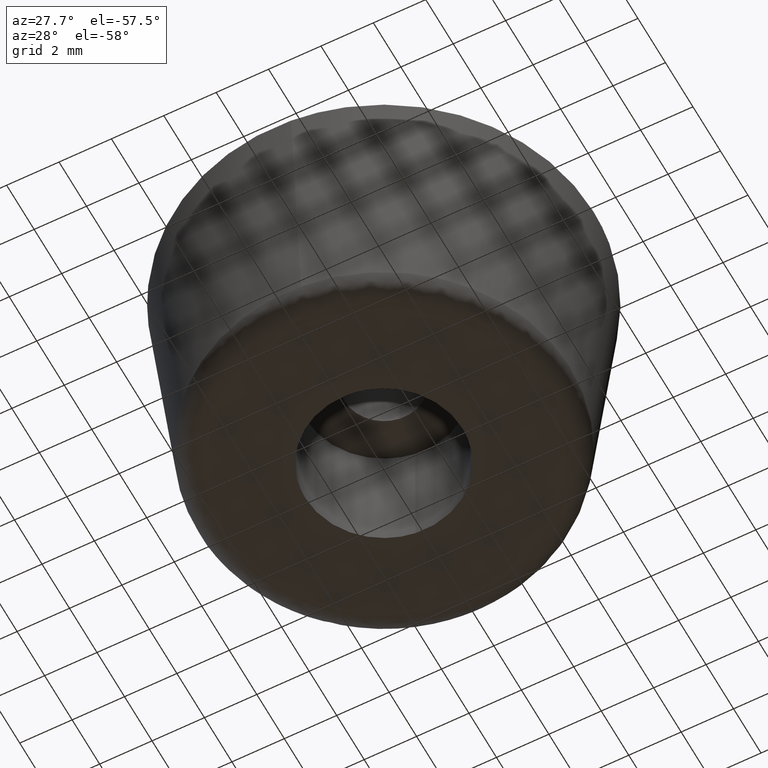
[diagram: clean part render]
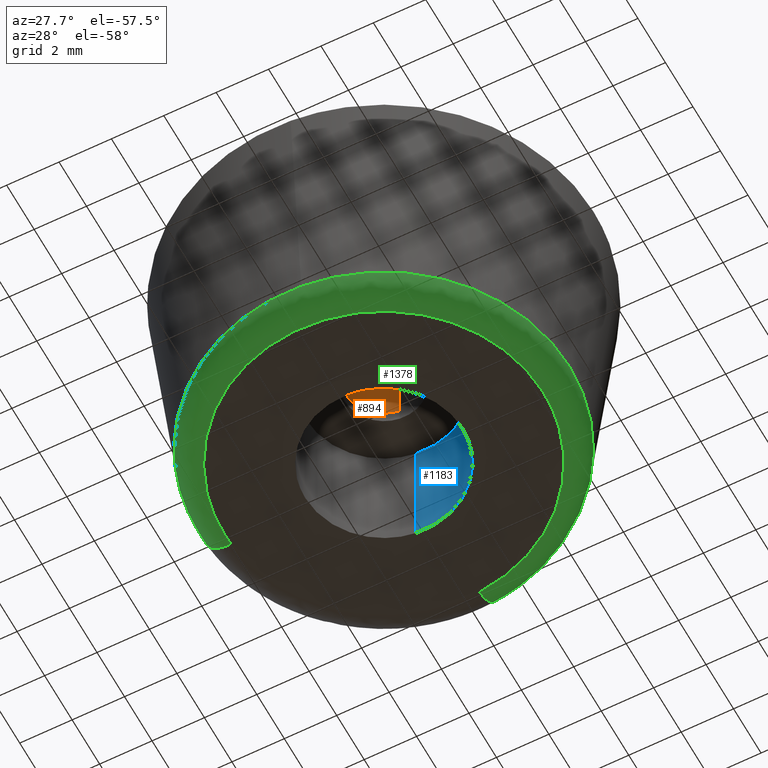
[diagram: same view with three faces highlighted in distinct colors, each labeled with its STEP entity id]
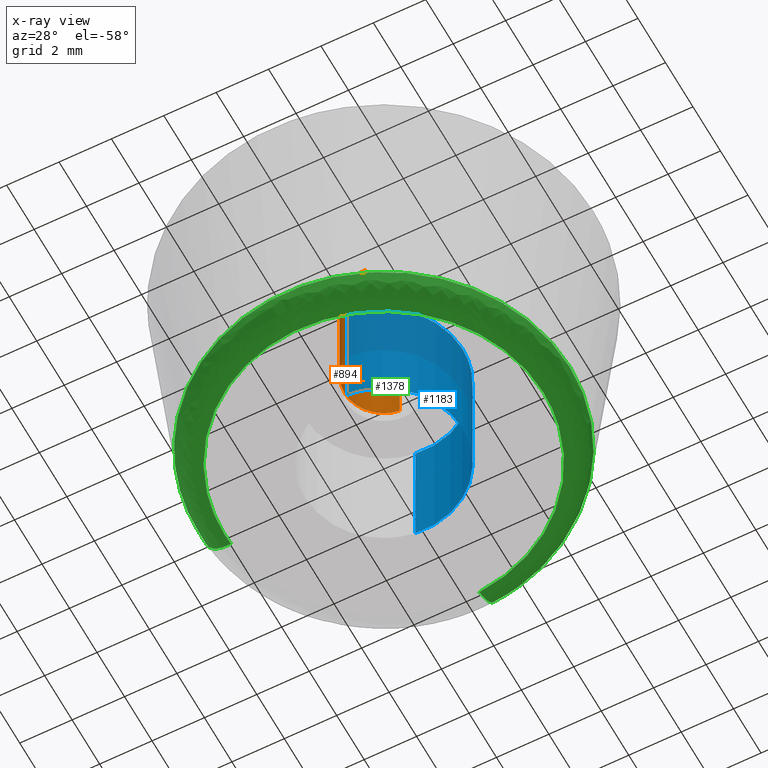
[diagram: x-ray of the same camera — body ghosted, the three highlighted faces saturated]
A machine part, auxiliary view with three faces highlighted in distinct colors.
The next image is the same camera in x-ray (body ghosted, the three faces saturated) — at least one of them is partly hidden behind the body in this view.
Their STEP definitions:

[orange] entity #894 — the highlighted face is a freeform B-spline surface patch.
#731=CARTESIAN_POINT('',(-0.177051351996448,1.489514289544155,10.0));
#732=VERTEX_POINT('',#731);
#750=CARTESIAN_POINT('',(-0.177051351996448,1.489514289544155,5.500000000000000));
#751=VERTEX_POINT('',#750);
#752=CARTESIAN_POINT('',(-0.177051351996448,1.489514289544155,10.0));
#753=CARTESIAN_POINT('',(-0.177051351996448,1.489514289544155,5.500000000000000));
#754=QUASI_UNIFORM_CURVE('',1,(#752,#753),.UNSPECIFIED.,.F.,.U.);
#755=EDGE_CURVE('',#732,#751,#754,.T.);
#774=CARTESIAN_POINT('',(0.091572809311081,-1.497202197632262,5.500000000000000));
#775=VERTEX_POINT('',#774);
#789=CARTESIAN_POINT('',(0.091572809311081,-1.497202197632262,10.0));
#790=VERTEX_POINT('',#789);
#791=CARTESIAN_POINT('',(0.091572809311081,-1.497202197632262,10.0));
#792=CARTESIAN_POINT('',(0.091572809311081,-1.497202197632262,5.500000000000000));
#793=QUASI_UNIFORM_CURVE('',1,(#791,#792),.UNSPECIFIED.,.F.,.U.);
#794=EDGE_CURVE('',#790,#775,#793,.T.);
#812=CARTESIAN_POINT('',(0.091572809302285,-1.497202197632800,10.112500000000001));
#813=CARTESIAN_POINT('',(-1.405629388330515,-1.588775006935085,10.112500000000002));
#814=CARTESIAN_POINT('',(-1.497202197632800,-0.091572809302285,10.112500000000001));
#815=CARTESIAN_POINT('',(-1.583679295098791,1.322315236259252,10.112500000000002));
#816=CARTESIAN_POINT('',(-0.177051351985138,1.489514289545500,10.112500000000004));
#817=CARTESIAN_POINT('',(0.091572809302285,-1.497202197632800,5.384687499999998));
#818=CARTESIAN_POINT('',(-1.405629388330515,-1.588775006935085,5.384687499999999));
#819=CARTESIAN_POINT('',(-1.497202197632800,-0.091572809302285,5.384687499999998));
#820=CARTESIAN_POINT('',(-1.583679295098791,1.322315236259252,5.384687499999999));
#821=CARTESIAN_POINT('',(-0.177051351985138,1.489514289545500,5.384687499999998));
#829=(BOUNDED_SURFACE()B_SPLINE_SURFACE(2,1,((#812,#817),(#813,#818),(#814,#819),(#815,#820),(#816,#821)),.UNSPECIFIED.,.F.,.F.,.U.)B_SPLINE_SURFACE_WITH_KNOTS((3,2,3),(2,2),(0.0,1.570796326794897,3.078760800517997),(0.0,4.727812500000006),.UNSPECIFIED.)GEOMETRIC_REPRESENTATION_ITEM()RATIONAL_B_SPLINE_SURFACE(((1.0,1.0),(0.707106781186548,0.707106781186548),(1.0,1.0),(0.718822509939086,0.718822509939086),(0.977505800795127,0.977505800795127)))REPRESENTATION_ITEM('')SURFACE());
#830=CARTESIAN_POINT('',(-1.500000000000000,0.0,10.0));
#831=VERTEX_POINT('',#830);
#832=CARTESIAN_POINT('',(-1.500000000000000,0.0,10.0));
#833=CARTESIAN_POINT('',(-1.500000000000001,1.332261788906676,10.0));
#834=CARTESIAN_POINT('',(-0.177051351996448,1.489514289544155,10.0));
#842=(BOUNDED_CURVE()B_SPLINE_CURVE(2,(#832,#833,#834),.UNSPECIFIED.,.F.,.U.)B_SPLINE_CURVE_WITH_KNOTS((3,3),(0.0,0.229562473513078),.UNSPECIFIED.)CURVE()GEOMETRIC_REPRESENTATION_ITEM()RATIONAL_B_SPLINE_CURVE((1.0,0.731050832855907,0.956026754182855))REPRESENTATION_ITEM(''));
#843=EDGE_CURVE('',#831,#732,#842,.T.);
#844=ORIENTED_EDGE('',*,*,#843,.F.);
#845=CARTESIAN_POINT('',(0.091572809311081,-1.497202197632263,10.0));
#846=CARTESIAN_POINT('',(0.045829144956703,-1.500000000000000,10.000000000000002));
#847=CARTESIAN_POINT('',(0.0,-1.500000000000000,10.0));
#848=CARTESIAN_POINT('',(-1.500000000000000,-1.500000000000000,10.000000000000002));
#849=CARTESIAN_POINT('',(-1.500000000000000,0.0,10.0));
#857=(BOUNDED_CURVE()B_SPLINE_CURVE(2,(#845,#846,#847,#848,#849),.UNSPECIFIED.,.F.,.U.)B_SPLINE_CURVE_WITH_KNOTS((3,2,3),(0.739332962239941,0.750000000000000,1.0),.UNSPECIFIED.)CURVE()GEOMETRIC_REPRESENTATION_ITEM()RATIONAL_B_SPLINE_CURVE((0.976072041668857,0.987502787901007,1.0,0.707106781186548,1.0))REPRESENTATION_ITEM(''));
#858=EDGE_CURVE('',#790,#831,#857,.T.);
#859=ORIENTED_EDGE('',*,*,#858,.F.);
#860=ORIENTED_EDGE('',*,*,#794,.T.);
#861=CARTESIAN_POINT('',(-1.500000000000000,0.0,5.500000000000000));
#862=VERTEX_POINT('',#861);
#863=CARTESIAN_POINT('',(0.091572809311081,-1.497202197632263,5.500000000000000));
#864=CARTESIAN_POINT('',(0.045829144956703,-1.500000000000000,5.499999999999999));
#865=CARTESIAN_POINT('',(0.0,-1.500000000000000,5.500000000000000));
#866=CARTESIAN_POINT('',(-1.500000000000000,-1.500000000000000,5.500000000000001));
#867=CARTESIAN_POINT('',(-1.500000000000000,0.0,5.500000000000000));
#875=(BOUNDED_CURVE()B_SPLINE_CURVE(2,(#863,#864,#865,#866,#867),.UNSPECIFIED.,.F.,.U.)B_SPLINE_CURVE_WITH_KNOTS((3,2,3),(0.739332962239941,0.750000000000000,1.0),.UNSPECIFIED.)CURVE()GEOMETRIC_REPRESENTATION_ITEM()RATIONAL_B_SPLINE_CURVE((0.976072041668857,0.987502787901007,1.0,0.707106781186548,1.0))REPRESENTATION_ITEM(''));
#876=EDGE_CURVE('',#775,#862,#875,.T.);
#877=ORIENTED_EDGE('',*,*,#876,.T.);
#878=CARTESIAN_POINT('',(-1.500000000000000,0.0,5.500000000000000));
#879=CARTESIAN_POINT('',(-1.500000000000000,1.332261788906676,5.499999999999999));
#880=CARTESIAN_POINT('',(-0.177051351996448,1.489514289544155,5.500000000000000));
#888=(BOUNDED_CURVE()B_SPLINE_CURVE(2,(#878,#879,#880),.UNSPECIFIED.,.F.,.U.)B_SPLINE_CURVE_WITH_KNOTS((3,3),(0.0,0.229562473513078),.UNSPECIFIED.)CURVE()GEOMETRIC_REPRESENTATION_ITEM()RATIONAL_B_SPLINE_CURVE((1.0,0.731050832855907,0.956026754182855))REPRESENTATION_ITEM(''));
#889=EDGE_CURVE('',#862,#751,#888,.T.);
#890=ORIENTED_EDGE('',*,*,#889,.T.);
#891=ORIENTED_EDGE('',*,*,#755,.F.);
#892=EDGE_LOOP('',(#844,#859,#860,#877,#890,#891));
#893=FACE_OUTER_BOUND('',#892,.T.);
#894=ADVANCED_FACE('',(#893),#829,.F.);

[blue] entity #1183 — the highlighted face is a freeform B-spline surface patch.
#1081=CARTESIAN_POINT('',(-0.354102703970275,2.979028579091000,5.125000000000002));
#1082=CARTESIAN_POINT('',(-0.268844185913933,2.989162846345817,5.125000000000001));
#1083=CARTESIAN_POINT('',(-0.183145618604571,2.994404395265600,5.125000000000001));
#1084=CARTESIAN_POINT('',(2.811258776661029,3.177550013870171,5.125000000000001));
#1085=CARTESIAN_POINT('',(2.994404395265600,0.183145618604571,5.125000000000001));
#1086=CARTESIAN_POINT('',(3.177550013870171,-2.811258776661029,5.125000000000001));
#1087=CARTESIAN_POINT('',(0.183145618604571,-2.994404395265600,5.125000000000001));
#1088=CARTESIAN_POINT('',(-0.354102703970275,2.979028579091000,-0.128125000000000));
#1089=CARTESIAN_POINT('',(-0.268844185913933,2.989162846345817,-0.128125000000000));
#1090=CARTESIAN_POINT('',(-0.183145618604571,2.994404395265600,-0.128125000000000));
#1091=CARTESIAN_POINT('',(2.811258776661029,3.177550013870171,-0.128125000000000));
#1092=CARTESIAN_POINT('',(2.994404395265600,0.183145618604571,-0.128125000000000));
#1093=CARTESIAN_POINT('',(3.177550013870171,-2.811258776661029,-0.128125000000000));
#1094=CARTESIAN_POINT('',(0.183145618604571,-2.994404395265600,-0.128125000000000));
#1102=(BOUNDED_SURFACE()B_SPLINE_SURFACE(2,1,((#1081,#1088),(#1082,#1089),(#1083,#1090),(#1084,#1091),(#1085,#1092),(#1086,#1093),(#1087,#1094)),.UNSPECIFIED.,.F.,.F.,.U.)B_SPLINE_SURFACE_WITH_KNOTS((3,2,2,3),(2,2),(0.0,0.198822509939086,5.169385258416225,10.139948006893370),(0.0,5.253125000000002),.UNSPECIFIED.)GEOMETRIC_REPRESENTATION_ITEM()RATIONAL_B_SPLINE_SURFACE(((0.977505800795127,0.977505800795127),(0.988284271247462,0.988284271247462),(1.0,1.0),(0.707106781186548,0.707106781186548),(1.0,1.0),(0.707106781186548,0.707106781186548),(1.0,1.0)))REPRESENTATION_ITEM('')SURFACE());
#1103=CARTESIAN_POINT('',(-0.354100897287089,2.979028793841571,6.573276E-015));
#1104=VERTEX_POINT('',#1103);
#1105=CARTESIAN_POINT('',(3.0,0.0,0.0));
#1106=VERTEX_POINT('',#1105);
#1107=CARTESIAN_POINT('',(-0.354100897287090,2.979028793841571,6.573276E-015));
#1108=CARTESIAN_POINT('',(-0.177671446064207,3.000000000000000,0.0));
#1109=CARTESIAN_POINT('',(0.0,3.0,0.0));
#1110=CARTESIAN_POINT('',(3.0,3.0,0.0));
#1111=CARTESIAN_POINT('',(3.0,0.0,0.0));
#1119=(BOUNDED_CURVE()B_SPLINE_CURVE(2,(#1107,#1108,#1109,#1110,#1111),.UNSPECIFIED.,.F.,.U.)B_SPLINE_CURVE_WITH_KNOTS((3,2,3),(0.229562576010579,0.250000000000000,0.500000000000000),.UNSPECIFIED.)CURVE()GEOMETRIC_REPRESENTATION_ITEM()RATIONAL_B_SPLINE_CURVE((0.956026955082251,0.976056068413933,1.0,0.707106781186548,1.0))REPRESENTATION_ITEM(''));
#1120=EDGE_CURVE('',#1104,#1106,#1119,.T.);
#1121=ORIENTED_EDGE('',*,*,#1120,.T.);
#1122=CARTESIAN_POINT('',(0.183142324537267,-2.994404596735751,-1.675049E-014));
#1123=VERTEX_POINT('',#1122);
#1124=CARTESIAN_POINT('',(3.0,0.0,0.0));
#1125=CARTESIAN_POINT('',(3.000000000000000,-2.822121311059588,0.0));
#1126=CARTESIAN_POINT('',(0.183142324537267,-2.994404596735751,-1.675049E-014));
#1134=(BOUNDED_CURVE()B_SPLINE_CURVE(2,(#1124,#1125,#1126),.UNSPECIFIED.,.F.,.U.)B_SPLINE_CURVE_WITH_KNOTS((3,3),(0.500000000000000,0.739333152056283),.UNSPECIFIED.)CURVE()GEOMETRIC_REPRESENTATION_ITEM()RATIONAL_B_SPLINE_CURVE((1.0,0.719603770901863,0.976072448481749))REPRESENTATION_ITEM(''));
#1135=EDGE_CURVE('',#1106,#1123,#1134,.T.);
#1136=ORIENTED_EDGE('',*,*,#1135,.T.);
#1137=CARTESIAN_POINT('',(0.183142365225985,-2.994404594247211,5.0));
#1138=VERTEX_POINT('',#1137);
#1139=CARTESIAN_POINT('',(0.183142365225985,-2.994404594247211,5.0));
#1140=CARTESIAN_POINT('',(0.183142324537267,-2.994404596735751,-1.675049E-014));
#1141=QUASI_UNIFORM_CURVE('',1,(#1139,#1140),.UNSPECIFIED.,.F.,.U.);
#1142=EDGE_CURVE('',#1138,#1123,#1141,.T.);
#1143=ORIENTED_EDGE('',*,*,#1142,.F.);
#1144=CARTESIAN_POINT('',(3.0,0.0,5.0));
#1145=VERTEX_POINT('',#1144);
#1146=CARTESIAN_POINT('',(3.0,0.0,5.0));
#1147=CARTESIAN_POINT('',(3.000000000000000,-2.822121272640244,5.0));
#1148=CARTESIAN_POINT('',(0.183142365225985,-2.994404594247210,5.0));
#1156=(BOUNDED_CURVE()B_SPLINE_CURVE(2,(#1146,#1147,#1148),.UNSPECIFIED.,.F.,.U.)B_SPLINE_CURVE_WITH_KNOTS((3,3),(0.500000000000000,0.739333149711674),.UNSPECIFIED.)CURVE()GEOMETRIC_REPRESENTATION_ITEM()RATIONAL_B_SPLINE_CURVE((1.0,0.719603773648744,0.976072443456796))REPRESENTATION_ITEM(''));
#1157=EDGE_CURVE('',#1145,#1138,#1156,.T.);
#1158=ORIENTED_EDGE('',*,*,#1157,.F.);
#1159=CARTESIAN_POINT('',(-0.354100919549448,2.979028791195380,5.0));
#1160=VERTEX_POINT('',#1159);
#1161=CARTESIAN_POINT('',(-0.354100919549448,2.979028791195380,5.0));
#1162=CARTESIAN_POINT('',(-0.177671457313062,3.000000000000000,4.999999999999999));
#1163=CARTESIAN_POINT('',(0.0,3.0,5.0));
#1164=CARTESIAN_POINT('',(3.0,3.0,5.000000000000001));
#1165=CARTESIAN_POINT('',(3.0,0.0,5.0));
#1173=(BOUNDED_CURVE()B_SPLINE_CURVE(2,(#1161,#1162,#1163,#1164,#1165),.UNSPECIFIED.,.F.,.U.)B_SPLINE_CURVE_WITH_KNOTS((3,2,3),(0.229562574747613,0.250000000000000,0.500000000000000),.UNSPECIFIED.)CURVE()GEOMETRIC_REPRESENTATION_ITEM()RATIONAL_B_SPLINE_CURVE((0.956026952606784,0.976056066934277,1.0,0.707106781186548,1.0))REPRESENTATION_ITEM(''));
#1174=EDGE_CURVE('',#1160,#1145,#1173,.T.);
#1175=ORIENTED_EDGE('',*,*,#1174,.F.);
#1176=CARTESIAN_POINT('',(-0.354100919549448,2.979028791195380,5.0));
#1177=CARTESIAN_POINT('',(-0.354100897287089,2.979028793841571,6.573276E-015));
#1178=QUASI_UNIFORM_CURVE('',1,(#1176,#1177),.UNSPECIFIED.,.F.,.U.);
#1179=EDGE_CURVE('',#1160,#1104,#1178,.T.);
#1180=ORIENTED_EDGE('',*,*,#1179,.T.);
#1181=EDGE_LOOP('',(#1121,#1136,#1143,#1158,#1175,#1180));
#1182=FACE_OUTER_BOUND('',#1181,.T.);
#1183=ADVANCED_FACE('',(#1182),#1102,.F.);

[green] entity #1378 — the highlighted face is a freeform B-spline surface patch.
#507=CARTESIAN_POINT('',(0.556273195869708,-7.068194039333701,0.900495479310866));
#508=VERTEX_POINT('',#507);
#509=CARTESIAN_POINT('',(-6.592786442159103,-2.608442718659928,0.900495227064749));
#510=VERTEX_POINT('',#509);
#511=CARTESIAN_POINT('',(0.556273195869708,-7.068194039333701,0.900495479310866));
#512=CARTESIAN_POINT('',(0.278565950792515,-7.090049850694355,0.900495472603550));
#513=CARTESIAN_POINT('',(-2.271369E-009,-7.090049853117159,0.900495465528123));
#514=CARTESIAN_POINT('',(-4.819634031246228,-7.090049895035534,0.900495343111980));
#515=CARTESIAN_POINT('',(-6.592786442159103,-2.608442718659928,0.900495227064749));
#523=(BOUNDED_CURVE()B_SPLINE_CURVE(2,(#511,#512,#513,#514,#515),.UNSPECIFIED.,.F.,.U.)B_SPLINE_CURVE_WITH_KNOTS((3,2,3),(0.736331438968270,0.750000000000000,0.937532633049277),.UNSPECIFIED.)CURVE()GEOMETRIC_REPRESENTATION_ITEM()RATIONAL_B_SPLINE_CURVE((0.969723644867636,0.983986284651474,1.0,0.780291853894541,0.890203284921337))REPRESENTATION_ITEM(''));
#524=EDGE_CURVE('',#508,#510,#523,.T.);
#584=CARTESIAN_POINT('',(-7.090050000000000,0.0,0.900497000000030));
#585=VERTEX_POINT('',#584);
#586=CARTESIAN_POINT('',(-6.592786442159103,-2.608442718659928,0.900495227064749));
#587=CARTESIAN_POINT('',(-7.090049917570078,-1.351619539486818,0.900496113532389));
#588=CARTESIAN_POINT('',(-7.090050000000000,0.0,0.900497000000030));
#596=(BOUNDED_CURVE()B_SPLINE_CURVE(2,(#586,#587,#588),.UNSPECIFIED.,.F.,.U.)B_SPLINE_CURVE_WITH_KNOTS((3,3),(0.937532633049277,1.0),.UNSPECIFIED.)CURVE()GEOMETRIC_REPRESENTATION_ITEM()RATIONAL_B_SPLINE_CURVE((0.890203284921337,0.926814927292006,1.0))REPRESENTATION_ITEM(''));
#597=EDGE_CURVE('',#510,#585,#596,.T.);
#646=CARTESIAN_POINT('',(7.090050000000000,0.0,0.900497000000030));
#647=VERTEX_POINT('',#646);
#648=CARTESIAN_POINT('',(7.090050000000000,0.0,0.900497000000030));
#649=CARTESIAN_POINT('',(7.090049994034375,-6.553980034838016,0.900496239655448));
#650=CARTESIAN_POINT('',(0.556273195869708,-7.068194039333701,0.900495479310866));
#658=(BOUNDED_CURVE()B_SPLINE_CURVE(2,(#648,#649,#650),.UNSPECIFIED.,.F.,.U.)B_SPLINE_CURVE_WITH_KNOTS((3,3),(0.500000000000000,0.736331438968270),.UNSPECIFIED.)CURVE()GEOMETRIC_REPRESENTATION_ITEM()RATIONAL_B_SPLINE_CURVE((1.0,0.723120496535074,0.969723644867636))REPRESENTATION_ITEM(''));
#659=EDGE_CURVE('',#647,#508,#658,.T.);
#661=CARTESIAN_POINT('',(0.534070790018086,7.069906096536348,0.900497036499555));
#662=VERTEX_POINT('',#661);
#663=CARTESIAN_POINT('',(0.534070790018086,7.069906096536348,0.900497036499555));
#664=CARTESIAN_POINT('',(7.090049999999999,6.574658442852974,0.900497000000030));
#665=CARTESIAN_POINT('',(7.090050000000000,0.0,0.900497000000030));
#673=(BOUNDED_CURVE()B_SPLINE_CURVE(2,(#663,#664,#665),.UNSPECIFIED.,.F.,.U.)B_SPLINE_CURVE_WITH_KNOTS((3,3),(0.263129840737712,0.500000000000000),.UNSPECIFIED.)CURVE()GEOMETRIC_REPRESENTATION_ITEM()RATIONAL_B_SPLINE_CURVE((0.970850634527094,0.722489346451253,1.0))REPRESENTATION_ITEM(''));
#674=EDGE_CURVE('',#662,#647,#673,.T.);
#676=CARTESIAN_POINT('',(-7.069906096536702,0.534070790020124,0.900497036504615));
#677=VERTEX_POINT('',#676);
#693=CARTESIAN_POINT('',(-7.090050000000000,0.0,0.900497000000030));
#694=CARTESIAN_POINT('',(-7.090050000000000,0.267415285518875,0.900497000000030));
#695=CARTESIAN_POINT('',(-7.069906096536702,0.534070790020124,0.900497036504615));
#703=(BOUNDED_CURVE()B_SPLINE_CURVE(2,(#693,#694,#695),.UNSPECIFIED.,.F.,.U.)B_SPLINE_CURVE_WITH_KNOTS((3,3),(0.0,0.013129840737809),.UNSPECIFIED.)CURVE()GEOMETRIC_REPRESENTATION_ITEM()RATIONAL_B_SPLINE_CURVE((1.0,0.984617434735181,0.970850634526890))REPRESENTATION_ITEM(''));
#704=EDGE_CURVE('',#585,#677,#703,.T.);
#1267=CARTESIAN_POINT('',(0.534402681586259,7.074299600681614,0.966647685481080));
#1268=CARTESIAN_POINT('',(7.608702282267876,6.539896919095358,0.966647685481079));
#1269=CARTESIAN_POINT('',(7.074299600681614,-0.534402681586259,0.966647685481080));
#1270=CARTESIAN_POINT('',(6.539896919095358,-7.608702282267876,0.966647685481079));
#1271=CARTESIAN_POINT('',(-0.534402681586258,-7.074299600681614,0.966647685481080));
#1272=CARTESIAN_POINT('',(-7.608702282267871,-6.539896919095360,0.966647685481079));
#1273=CARTESIAN_POINT('',(-7.074299600681614,0.534402681586261,0.966647685481080));
#1274=CARTESIAN_POINT('',(0.531806982593553,7.039938335328143,-0.065964193423950));
#1275=CARTESIAN_POINT('',(7.571745317921693,6.508131352734588,-0.065964193423950));
#1276=CARTESIAN_POINT('',(7.039938335328143,-0.531806982593553,-0.065964193423950));
#1277=CARTESIAN_POINT('',(6.508131352734588,-7.571745317921693,-0.065964193423950));
#1278=CARTESIAN_POINT('',(-0.531806982593552,-7.039938335328143,-0.065964193423950));
#1279=CARTESIAN_POINT('',(-7.571745317921690,-6.508131352734595,-0.065964193423950));
#1280=CARTESIAN_POINT('',(-7.039938335328143,0.531806982593555,-0.065964193423950));
#1281=CARTESIAN_POINT('',(0.454149778073336,6.011930150008539,0.002177248942154));
#1282=CARTESIAN_POINT('',(6.466079928081876,5.557780371935204,0.002177248942154));
#1283=CARTESIAN_POINT('',(6.011930150008539,-0.454149778073336,0.002177248942154));
#1284=CARTESIAN_POINT('',(5.557780371935206,-6.466079928081874,0.002177248942154));
#1285=CARTESIAN_POINT('',(-0.454149778073335,-6.011930150008539,0.002177248942154));
#1286=CARTESIAN_POINT('',(-6.466079928081872,-5.557780371935206,0.002177248942154));
#1287=CARTESIAN_POINT('',(-6.011930150008539,0.454149778073338,0.002177248942154));
#1295=(BOUNDED_SURFACE()B_SPLINE_SURFACE(2,2,((#1267,#1274,#1281),(#1268,#1275,#1282),(#1269,#1276,#1283),(#1270,#1277,#1284),(#1271,#1278,#1285),(#1272,#1279,#1286),(#1273,#1280,#1287)),.UNSPECIFIED.,.F.,.F.,.U.)B_SPLINE_SURFACE_WITH_KNOTS((3,2,2,3),(3,3),(0.0,11.754479002803070,23.508958005606139,35.263437008409213),(0.0,1.695224491119543),.UNSPECIFIED.)GEOMETRIC_REPRESENTATION_ITEM()RATIONAL_B_SPLINE_SURFACE(((0.912663504222294,0.636266711117529,0.917081492313472),(0.645350552777061,0.449908506074467,0.648474542115535),(0.912663504222294,0.636266711117529,0.917081492313472),(0.645350552777061,0.449908506074467,0.648474542115535),(0.912663504222294,0.636266711117529,0.917081492313472),(0.645350552777061,0.449908506074467,0.648474542115535),(0.912663504222294,0.636266711117529,0.917081492313472)))REPRESENTATION_ITEM('')SURFACE());
#1296=CARTESIAN_POINT('',(0.459117783654933,6.077695463241705,2.831681E-014));
#1297=VERTEX_POINT('',#1296);
#1298=CARTESIAN_POINT('',(6.095012000000001,0.0,0.0));
#1299=VERTEX_POINT('',#1298);
#1300=CARTESIAN_POINT('',(0.459117783654933,6.077695463241705,2.831681E-014));
#1301=CARTESIAN_POINT('',(6.095012000000001,5.651951975630074,2.635567E-014));
#1302=CARTESIAN_POINT('',(6.095012000000001,0.0,0.0));
#1310=(BOUNDED_CURVE()B_SPLINE_CURVE(2,(#1300,#1301,#1302),.UNSPECIFIED.,.F.,.U.)B_SPLINE_CURVE_WITH_KNOTS((3,3),(0.263129840738883,0.500000000000000),.UNSPECIFIED.)CURVE()GEOMETRIC_REPRESENTATION_ITEM()RATIONAL_B_SPLINE_CURVE((0.970850634524638,0.722489346452625,1.0))REPRESENTATION_ITEM(''));
#1311=EDGE_CURVE('',#1297,#1299,#1310,.T.);
#1312=ORIENTED_EDGE('',*,*,#1311,.F.);
#1313=CARTESIAN_POINT('',(0.534070790018086,7.069906096536348,0.900497036499554));
#1314=CARTESIAN_POINT('',(0.527287660246027,6.980112587104808,4.503731E-010));
#1315=CARTESIAN_POINT('',(0.459117783654933,6.077695463241705,2.831681E-014));
#1323=(BOUNDED_CURVE()B_SPLINE_CURVE(2,(#1313,#1314,#1315),.UNSPECIFIED.,.F.,.U.)B_SPLINE_CURVE_WITH_KNOTS((3,3),(-1.710024838795867,-0.277482477000941),.UNSPECIFIED.)CURVE()GEOMETRIC_REPRESENTATION_ITEM()RATIONAL_B_SPLINE_CURVE((0.888708540586755,0.660422352911739,0.892725170843537))REPRESENTATION_ITEM(''));
#1324=EDGE_CURVE('',#662,#1297,#1323,.T.);
#1325=ORIENTED_EDGE('',*,*,#1324,.F.);
#1326=ORIENTED_EDGE('',*,*,#674,.T.);
#1327=ORIENTED_EDGE('',*,*,#659,.T.);
#1328=ORIENTED_EDGE('',*,*,#524,.T.);
#1329=ORIENTED_EDGE('',*,*,#597,.T.);
#1330=ORIENTED_EDGE('',*,*,#704,.T.);
#1331=CARTESIAN_POINT('',(-6.077695463252528,0.459117783657172,2.832610E-014));
#1332=VERTEX_POINT('',#1331);
#1333=CARTESIAN_POINT('',(-7.069906096536702,0.534070790020124,0.900497036504615));
#1334=CARTESIAN_POINT('',(-6.980112587116011,0.527287660246874,4.702132E-010));
#1335=CARTESIAN_POINT('',(-6.077695463252528,0.459117783657172,2.832610E-014));
#1343=(BOUNDED_CURVE()B_SPLINE_CURVE(2,(#1333,#1334,#1335),.UNSPECIFIED.,.F.,.U.)B_SPLINE_CURVE_WITH_KNOTS((3,3),(-1.710024838806701,-0.277482477024396),.UNSPECIFIED.)CURVE()GEOMETRIC_REPRESENTATION_ITEM()RATIONAL_B_SPLINE_CURVE((0.888708540590208,0.660422352913720,0.892725170835931))REPRESENTATION_ITEM(''));
#1344=EDGE_CURVE('',#677,#1332,#1343,.T.);
#1345=ORIENTED_EDGE('',*,*,#1344,.T.);
#1346=CARTESIAN_POINT('',(-6.095012000000001,0.0,2.842171E-014));
#1347=VERTEX_POINT('',#1346);
#1348=CARTESIAN_POINT('',(-6.095012000000001,0.0,2.842171E-014));
#1349=CARTESIAN_POINT('',(-6.095012000000001,0.229885455584437,2.842171E-014));
#1350=CARTESIAN_POINT('',(-6.077695463252530,0.459117783657172,2.832610E-014));
#1358=(BOUNDED_CURVE()B_SPLINE_CURVE(2,(#1348,#1349,#1350),.UNSPECIFIED.,.F.,.U.)B_SPLINE_CURVE_WITH_KNOTS((3,3),(0.0,0.013129840738962),.UNSPECIFIED.)CURVE()GEOMETRIC_REPRESENTATION_ITEM()RATIONAL_B_SPLINE_CURVE((1.0,0.984617434733829,0.970850634524470))REPRESENTATION_ITEM(''));
#1359=EDGE_CURVE('',#1347,#1332,#1358,.T.);
#1360=ORIENTED_EDGE('',*,*,#1359,.F.);
#1361=CARTESIAN_POINT('',(6.095012000000001,0.0,0.0));
#1362=CARTESIAN_POINT('',(6.095012000000002,-6.095012000000002,2.842171E-014));
#1363=CARTESIAN_POINT('',(0.0,-6.095012000000001,2.842171E-014));
#1364=CARTESIAN_POINT('',(-6.095012000000002,-6.095012000000002,2.842171E-014));
#1365=CARTESIAN_POINT('',(-6.095012000000001,0.0,2.842171E-014));
#1373=(BOUNDED_CURVE()B_SPLINE_CURVE(2,(#1361,#1362,#1363,#1364,#1365),.UNSPECIFIED.,.F.,.U.)B_SPLINE_CURVE_WITH_KNOTS((3,2,3),(0.500000000000000,0.750000000000000,1.0),.UNSPECIFIED.)CURVE()GEOMETRIC_REPRESENTATION_ITEM()RATIONAL_B_SPLINE_CURVE((1.0,0.707106781186548,1.0,0.707106781186548,1.0))REPRESENTATION_ITEM(''));
#1374=EDGE_CURVE('',#1299,#1347,#1373,.T.);
#1375=ORIENTED_EDGE('',*,*,#1374,.F.);
#1376=EDGE_LOOP('',(#1312,#1325,#1326,#1327,#1328,#1329,#1330,#1345,#1360,#1375));
#1377=FACE_OUTER_BOUND('',#1376,.T.);
#1378=ADVANCED_FACE('',(#1377),#1295,.T.);